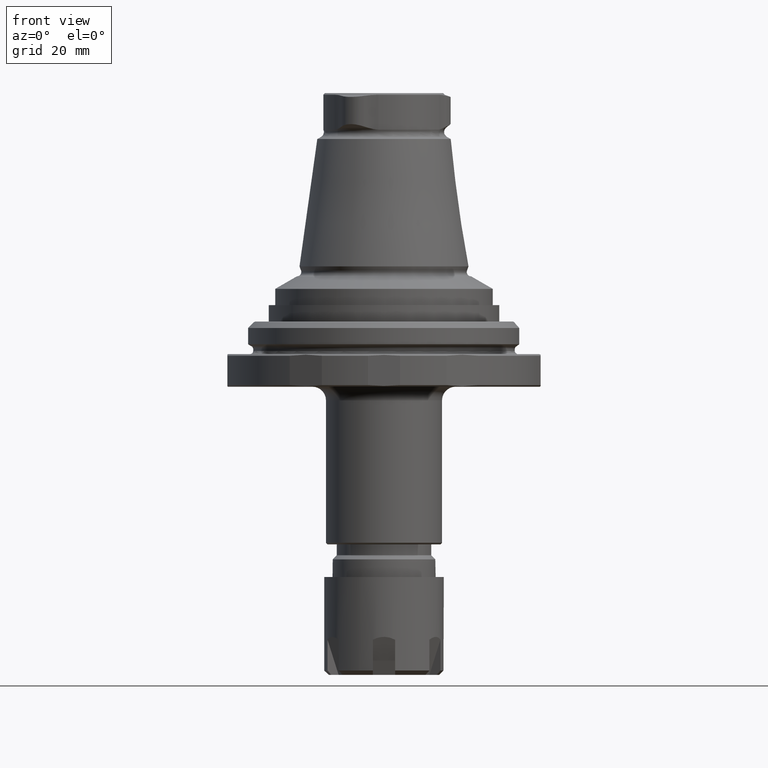
[diagram: clean part render]
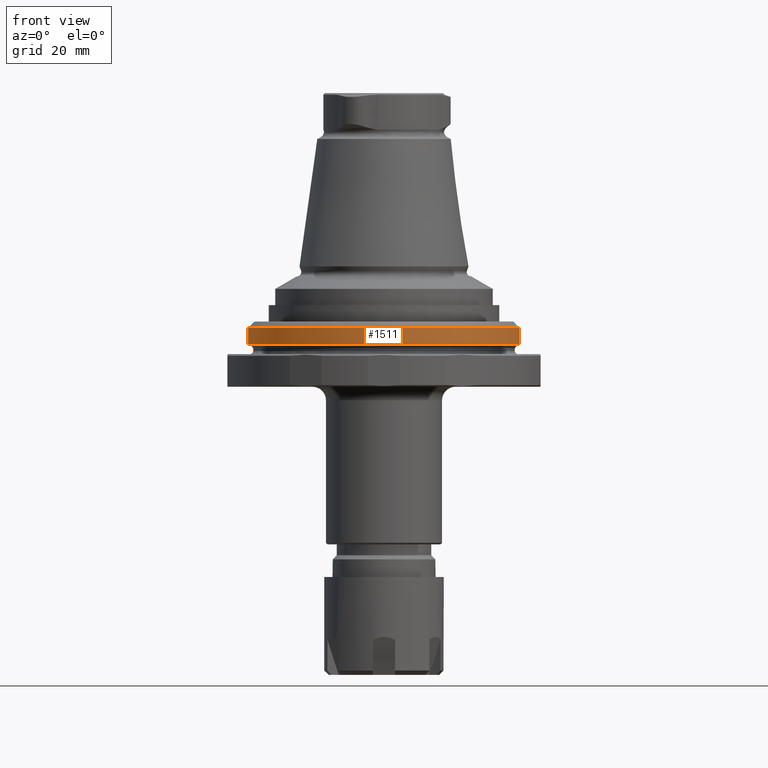
[diagram: same view with one face highlighted and labeled with its STEP entity id]
A machine part, front view. The second image highlights one B-rep face of the part: STEP entity #1511.
In plain terms, the highlighted cylindrical surface (bore or boss wall) has radius 25 mm, axis along (0, 0, -1).
Its self-contained STEP definition (entity closure, byte-faithful):
#251=CYLINDRICAL_SURFACE('',#1697,25.);
#671=ORIENTED_EDGE('',*,*,#885,.F.);
#672=ORIENTED_EDGE('',*,*,#884,.T.);
#884=EDGE_CURVE('',#1030,#1030,#1106,.T.);
#885=EDGE_CURVE('',#1031,#1031,#1107,.T.);
#1030=VERTEX_POINT('',#2732);
#1031=VERTEX_POINT('',#2735);
#1106=CIRCLE('',#1696,25.);
#1107=CIRCLE('',#1698,25.);
#1233=EDGE_LOOP('',(#671));
#1234=EDGE_LOOP('',(#672));
#1369=FACE_BOUND('',#1233,.T.);
#1370=FACE_BOUND('',#1234,.T.);
#1511=ADVANCED_FACE('',(#1369,#1370),#251,.T.);
#1696=AXIS2_PLACEMENT_3D('',#2731,#2111,#2112);
#1697=AXIS2_PLACEMENT_3D('',#2733,#2113,#2114);
#1698=AXIS2_PLACEMENT_3D('',#2734,#2115,#2116);
#2111=DIRECTION('',(1.22464605849178E-16,1.04225259501902E-17,-1.));
#2112=DIRECTION('',(-1.,-1.84889274661175E-32,-1.22464605849178E-16));
#2113=DIRECTION('',(1.22464605849178E-16,1.04225259501902E-17,-1.));
#2114=DIRECTION('',(-1.,-1.84889274661175E-32,-1.22464605849178E-16));
#2115=DIRECTION('',(1.22464605849178E-16,1.04225259501902E-17,-1.));
#2116=DIRECTION('',(-1.,-1.84889274661175E-32,-1.22464605849178E-16));
#2731=CARTESIAN_POINT('',(4.56425937766398E-15,4.37746089907985E-17,3.8));
#2732=CARTESIAN_POINT('',(-25.,4.3774608990798E-17,3.79999999999999));
#2733=CARTESIAN_POINT('',(5.15208948574003E-15,9.38027335517118E-17,-1.00000000000001));
#2734=CARTESIAN_POINT('',(4.93165319521151E-15,7.50421868413693E-17,0.799999999999989));
#2735=CARTESIAN_POINT('',(-25.,7.50421868413689E-17,0.799999999999986));